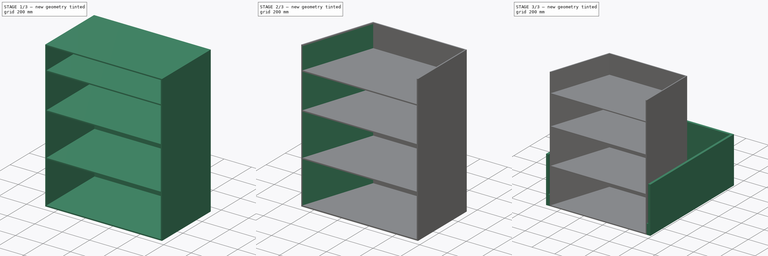
[diagram: build sequence overview — one tinted view per stage of 3, left to right]
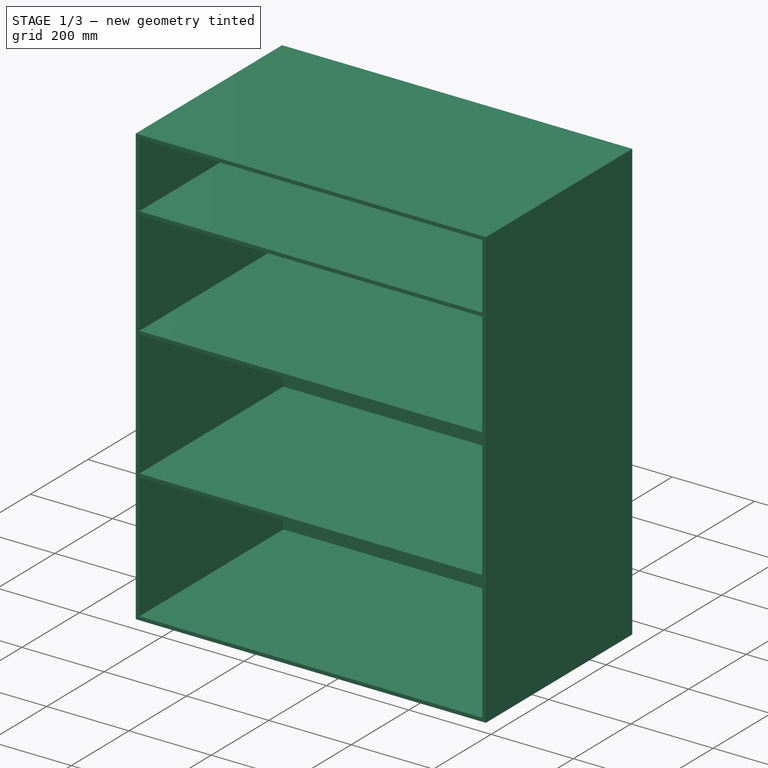
[diagram: stage 1 of 3 — iso view after this stage's code; geometry added in this stage tinted green]
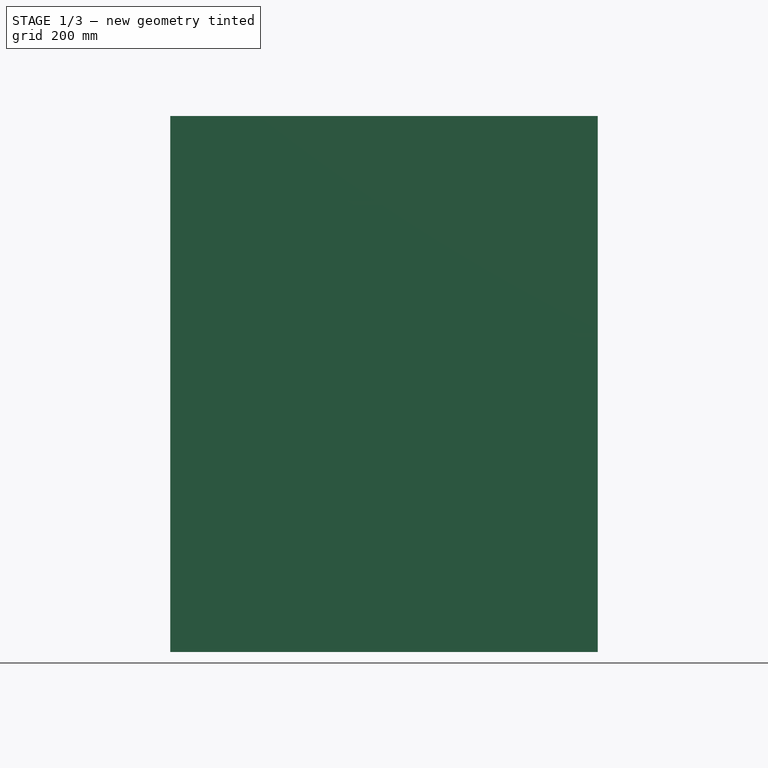
[diagram: stage 1 of 3 — front view after this stage's code; geometry added in this stage tinted green]
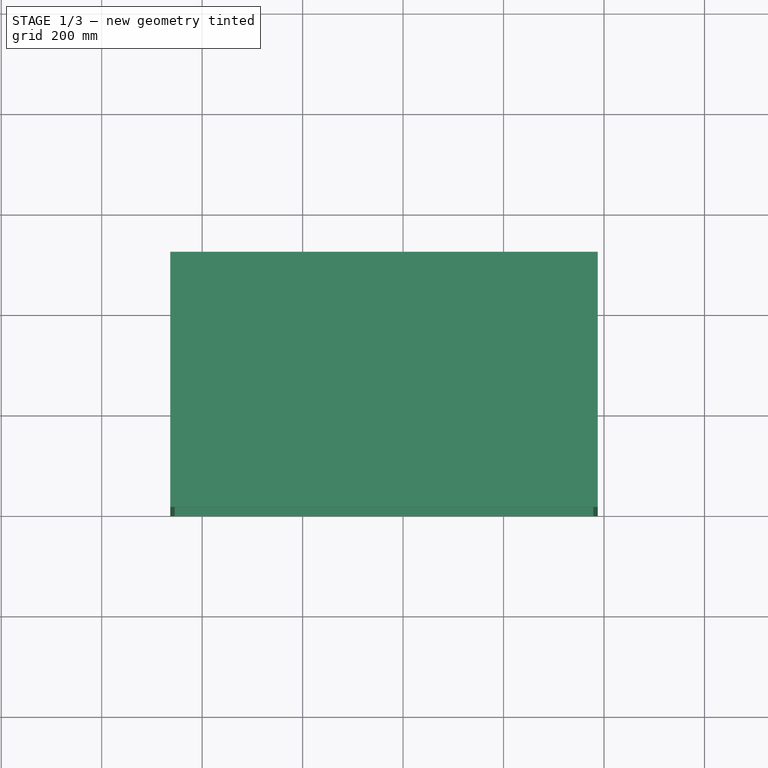
[diagram: stage 1 of 3 — top view after this stage's code; geometry added in this stage tinted green]
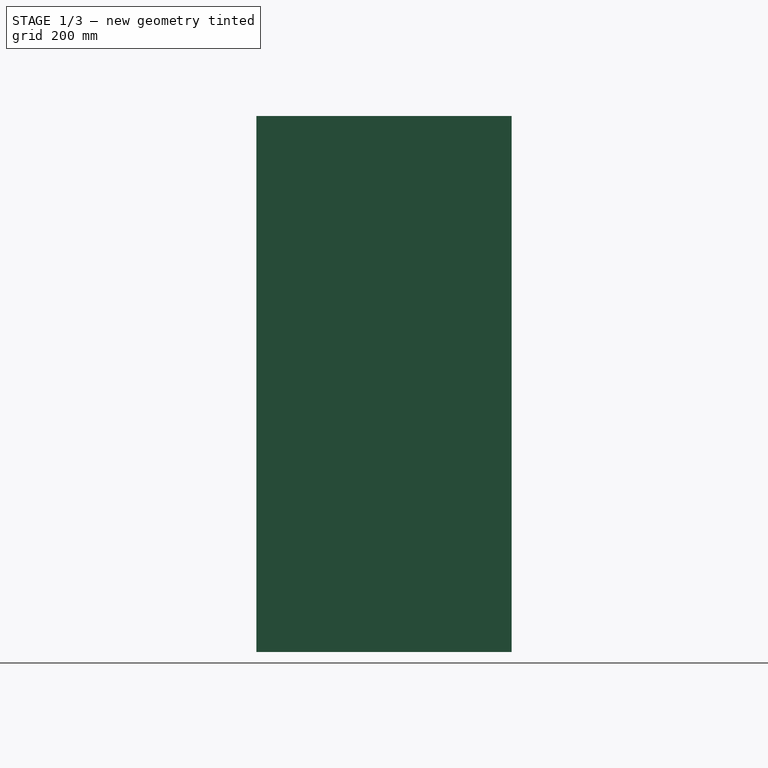
[diagram: stage 1 of 3 — right view after this stage's code; geometry added in this stage tinted green]
FCSTD DOCUMENT  (FreeCAD 0.19R24276 (Git))
Label: hingedcabinet
License: All rights reserved
LicenseURL: http://en.wikipedia.org/wiki/All_rights_reserved
objects: Sketcher::SketchObject×7, PartDesign::Pad×4, PartDesign::Pocket×3, PartDesign::Body×2, App::Part×1
note: 23 computed .brp shape members not serialized (recipe doc carries the construction recipe); baked Part::Feature solids carry a one-line shape summary decoded from their .brp

FEATURE [Sketcher::SketchObject] Sketch
  FullyConstrained = true
  MapMode = 5
  Support = -> [XY_Plane]
  sketch-geometry (6):
    g0: LineSegment StartX=-12.54 StartY=7.39e-13 StartZ=0 EndX=-863.44 EndY=7.39e-13 EndZ=0
    g1: LineSegment StartX=-863.44 StartY=508 StartZ=0 EndX=-12.54 EndY=508 EndZ=0
    g2: LineSegment StartX=-12.54 StartY=508 StartZ=0 EndX=-12.54 EndY=7.39e-13 EndZ=0
    g3: LineSegment StartX=-863.44 StartY=508 StartZ=0 EndX=-863.44 EndY=7.39e-13 EndZ=0
    g4: LineSegment StartX=-12.54 StartY=7.39e-13 StartZ=0 EndX=0 EndY=0 EndZ=0
    g5: LineSegment StartX=-875.98 StartY=0 StartZ=0 EndX=-863.44 EndY=7.39e-13 EndZ=0
  constraints (17):
    c: Coincident(g1,g2)
    c: Coincident(g2,g0)
    c: Horizontal(g0)
    c: Horizontal(g1)
    c: Vertical(g2)
    c: DistanceX(g0,g0) = 850.9
    c: DistanceY(g2,g2) = 508
    c: Coincident(g3,g1)
    c: Coincident(g3,g0)
    c: PointOnObject(g0,g-1)
    c: Coincident(g4,g0)
    c: Coincident(g4,g-1)
    c: PointOnObject(g5,g-1)
    c: Coincident(g5,g0)
    c: Equal(g4,g5)
    c: DistanceX(g5,g5) = 12.54
    c: Vertical(g1,g0)
FEATURE [PartDesign::Pad] Pad
  Direction = (1,1,1)
  Length = 1066.8
  Length2 = 100
  Profile = -> Sketch
  Type = 0
FEATURE [PartDesign::Body] Body001  label="Pantry"
  Group = -> [Sketch001,Pad001,Sketch002,Pad002]
  Origin = -> Origin003
  Tip = -> Pad002
FEATURE [Sketcher::SketchObject] Sketch003
  ExternalGeometry = -> [Pad,Sketch]
  FullyConstrained = true
  MapMode = 5
  Placement = pos=(0,7.39e-13,0) rot=(1,0,0;1.5708rad)
  Support = -> [Pad]
  sketch-geometry (16):
    g0: LineSegment StartX=-854.709 StartY=313.531 StartZ=0 EndX=-21.2713 EndY=313.531 EndZ=0
    g1: LineSegment StartX=-854.709 StartY=322.263 StartZ=0 EndX=-21.2713 EndY=322.263 EndZ=0
    g2: LineSegment StartX=-854.709 StartY=627.062 StartZ=0 EndX=-21.2713 EndY=627.062 EndZ=0
    g3: LineSegment StartX=-854.709 StartY=635.794 StartZ=0 EndX=-21.2713 EndY=635.794 EndZ=0
    g4: LineSegment StartX=-854.709 StartY=889.794 StartZ=0 EndX=-21.2713 EndY=889.794 EndZ=0
    g5: LineSegment StartX=-854.709 StartY=898.525 StartZ=0 EndX=-21.2713 EndY=898.525 EndZ=0
    g6: LineSegment StartX=-854.709 StartY=1058.07 StartZ=0 EndX=-854.709 EndY=898.525 EndZ=0
    g7: LineSegment StartX=-854.709 StartY=1058.07 StartZ=0 EndX=-21.2713 EndY=1058.07 EndZ=0
    g8: LineSegment StartX=-21.2713 StartY=1058.07 StartZ=0 EndX=-21.2713 EndY=898.525 EndZ=0
    g9: LineSegment StartX=-854.709 StartY=8.73125 StartZ=0 EndX=-21.2713 EndY=8.73125 EndZ=0
    g10: LineSegment StartX=-854.709 StartY=889.794 StartZ=0 EndX=-854.709 EndY=635.794 EndZ=0
    g11: LineSegment StartX=-21.2713 StartY=889.794 StartZ=0 EndX=-21.2713 EndY=635.794 EndZ=0
    g12: LineSegment StartX=-21.2713 StartY=627.063 StartZ=0 EndX=-21.2712 EndY=322.263 EndZ=0
    g13: LineSegment StartX=-854.709 StartY=627.063 StartZ=0 EndX=-854.709 EndY=322.263 EndZ=0
    g14: LineSegment StartX=-854.709 StartY=313.531 StartZ=0 EndX=-854.709 EndY=8.73125 EndZ=0
    g15: LineSegment StartX=-21.2712 StartY=313.531 StartZ=0 EndX=-21.2712 EndY=8.73125 EndZ=0
  constraints (50):
    c: Horizontal(g0)
    c: Horizontal(g1)
    c: Horizontal(g2)
    c: Horizontal(g3)
    c: Horizontal(g4)
    c: Horizontal(g5)
    c: Vertical(g6)
    c: Horizontal(g7)
    c: Vertical(g8)
    c: Horizontal(g9)
    c: Coincident(g15,g9)
    c: Coincident(g14,g9)
    c: Coincident(g7,g6)
    c: Coincident(g8,g7)
    c: DistanceY(g7,g-6) = 8.73125
    c: DistanceX(g7,g-6) = 8.73125
    c: DistanceY(g-5,g14) = 8.73125
    c: DistanceX(g-5,g14) = 8.73125
    c: PointOnObject(g3,g6)
    c: PointOnObject(g2,g6)
    c: PointOnObject(g1,g6)
    c: PointOnObject(g0,g6)
    c: PointOnObject(g1,g8)
    c: PointOnObject(g0,g8)
    c: PointOnObject(g3,g8)
    c: PointOnObject(g2,g8)
    c: DistanceY(g4,g5) = 8.73125
    c: DistanceY(g3,g4) = 254
    c: DistanceY(g2,g3) = 8.73125
    c: DistanceY(g1,g2) = 304.8
    c: DistanceY(g0,g1) = 8.73125
    c: DistanceY(g14,g0) = 304.8
    c: Coincident(g6,g5)
    c: Coincident(g10,g4)
    c: Tangent(g6,g10)
    c: Coincident(g8,g5)
    c: Coincident(g11,g4)
    c: Tangent(g8,g11)
    c: PointOnObject(g11,g3)
    c: PointOnObject(g12,g2)
    c: Tangent(g11,g12)
    c: PointOnObject(g10,g3)
    c: PointOnObject(g13,g2)
    c: Tangent(g10,g13)
    c: PointOnObject(g13,g1)
    c: PointOnObject(g14,g0)
    c: Tangent(g13,g14)
    c: PointOnObject(g12,g1)
    c: PointOnObject(g15,g0)
    c: Tangent(g12,g15)
FEATURE [PartDesign::Pocket] Pocket
  BaseFeature = -> Pad
  Length = 500
  Length2 = 100
  Profile = -> Sketch003
  Type = 0
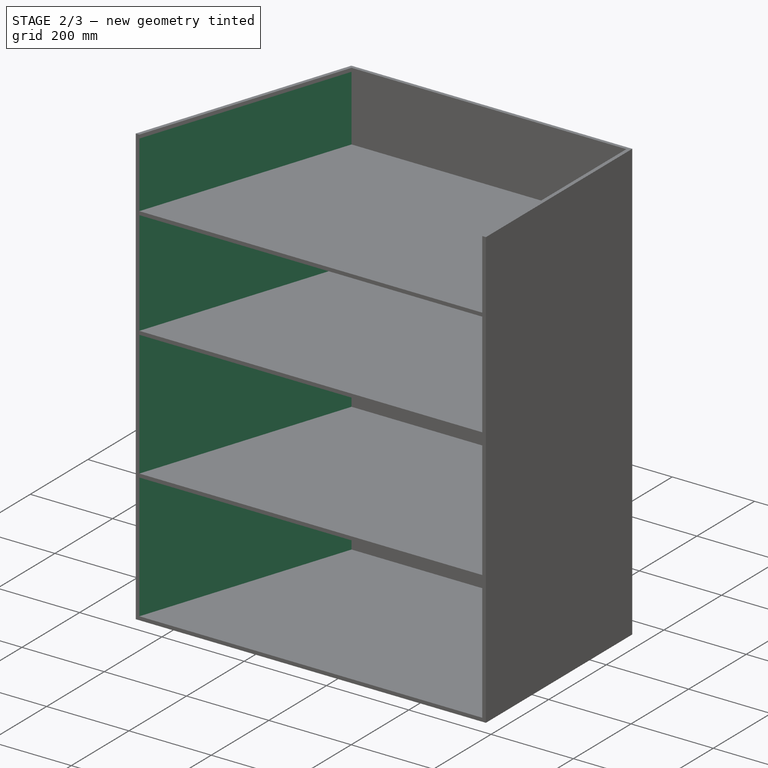
[diagram: stage 2 of 3 — iso view after this stage's code; geometry added in this stage tinted green]
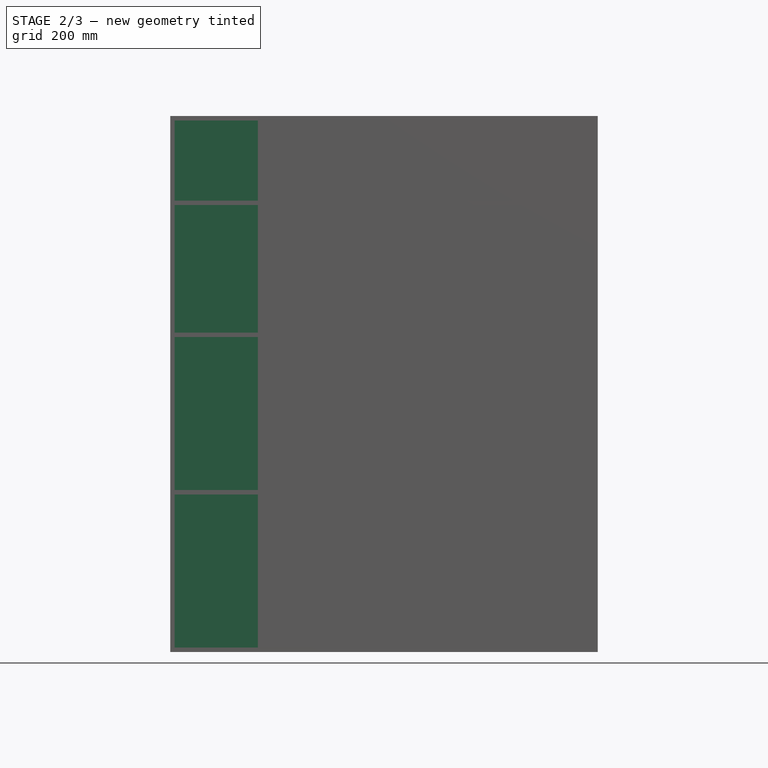
[diagram: stage 2 of 3 — front view after this stage's code; geometry added in this stage tinted green]
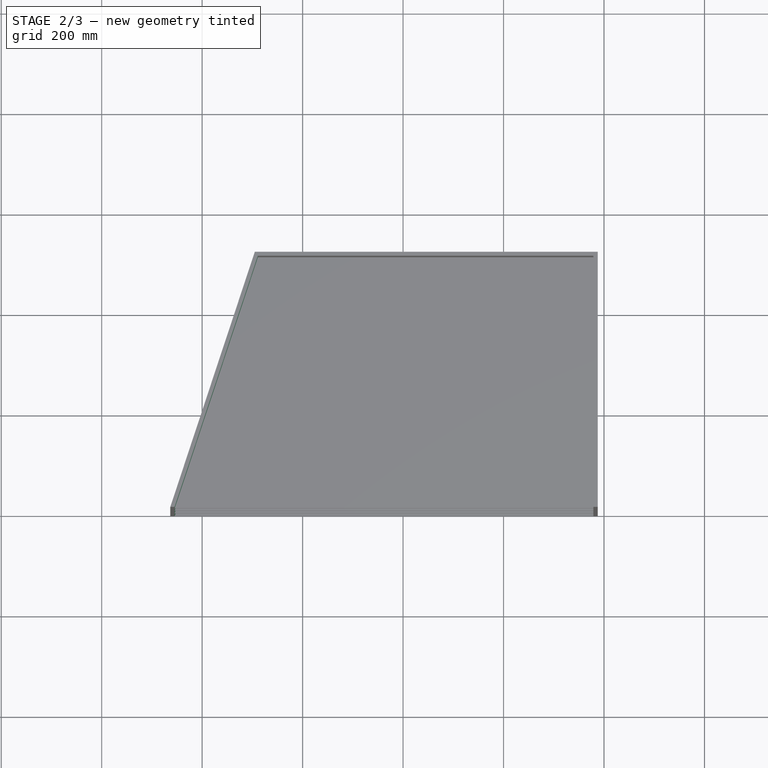
[diagram: stage 2 of 3 — top view after this stage's code; geometry added in this stage tinted green]
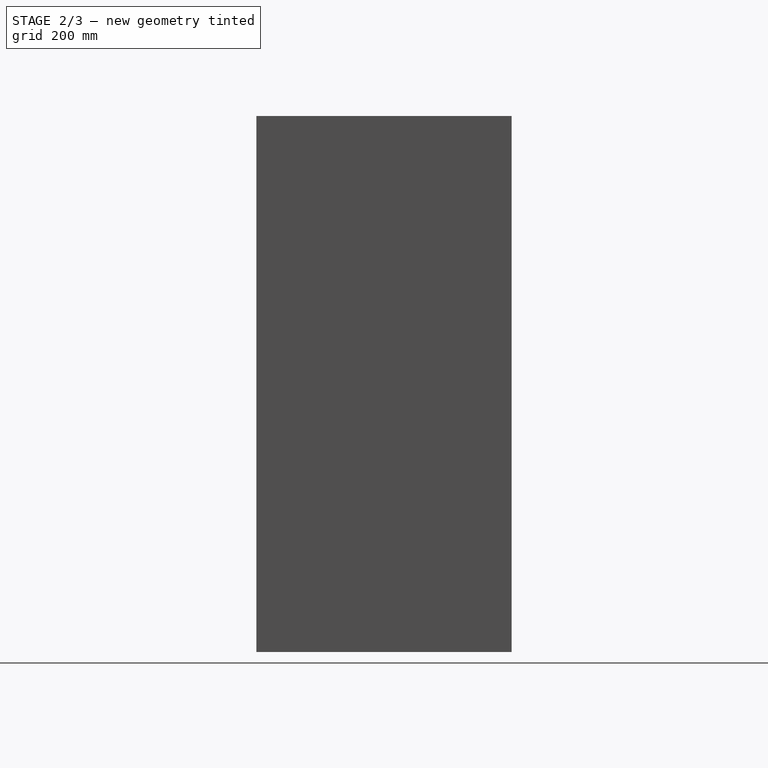
[diagram: stage 2 of 3 — right view after this stage's code; geometry added in this stage tinted green]
FEATURE [Sketcher::SketchObject] Sketch004
  ExternalGeometry = -> [Pocket]
  FullyConstrained = true
  MapMode = 5
  Placement = pos=(0,0,1066.8) rot=(0,0,1;0rad)
  Support = -> [Pocket]
  sketch-geometry (4):
    g0: ArcOfCircle CenterX=-12.54 CenterY=7.39e-13 CenterZ=0 NormalX=0 NormalY=0 NormalZ=1 AngleXU=0 Radius=850.9 StartAngle=2.50182 EndAngle=3.14159
    g1: LineSegment StartX=-863.44 StartY=8.527e-13 StartZ=0 EndX=-695.158 EndY=508 EndZ=0
    g2: LineSegment StartX=-695.158 StartY=508 StartZ=0 EndX=-863.44 EndY=508 EndZ=0
    g3: LineSegment StartX=-863.44 StartY=508 StartZ=0 EndX=-863.44 EndY=8.527e-13 EndZ=0
  constraints (9):
    c: Coincident(g0,g-6)
    c: Coincident(g0,g-5)
    c: PointOnObject(g0,g-4)
    c: Coincident(g1,g0)
    c: Coincident(g1,g0)
    c: Coincident(g2,g1)
    c: Coincident(g2,g-4)
    c: Coincident(g3,g2)
    c: Coincident(g3,g1)
FEATURE [PartDesign::Pocket] Pocket001
  BaseFeature = -> Pocket
  Length = 5
  Length2 = 100
  Profile = -> Sketch004
  Type = 1
FEATURE [Sketcher::SketchObject] Sketch005
  ExternalGeometry = -> [Pocket001]
  FullyConstrained = true
  MapMode = 5
  Placement = pos=(0,0,1066.8) rot=(0,0,1;0rad)
  Support = -> [Pocket001]
  sketch-geometry (4):
    g0: LineSegment StartX=-854.709 StartY=7.39e-13 StartZ=0 EndX=-686.426 EndY=508 EndZ=0
    g1: LineSegment StartX=-686.426 StartY=508 StartZ=0 EndX=-695.158 EndY=508 EndZ=0
    g2: LineSegment StartX=-695.158 StartY=508 StartZ=0 EndX=-863.44 EndY=7.39e-13 EndZ=0
    g3: LineSegment StartX=-863.44 StartY=7.39e-13 StartZ=0 EndX=-854.709 EndY=7.39e-13 EndZ=0
  constraints (10):
    c: PointOnObject(g0,g-4)
    c: PointOnObject(g0,g-5)
    c: DistanceX(g-5,g0) = 8.73125
    c: DistanceX(g-4,g0) = 8.73125
    c: Coincident(g1,g0)
    c: Coincident(g1,g-5)
    c: Coincident(g2,g1)
    c: Coincident(g2,g-4)
    c: Coincident(g3,g2)
    c: Coincident(g3,g0)
FEATURE [PartDesign::Pad] Pad003
  BaseFeature = -> Pocket001
  Direction = (1,1,1)
  Length = 10
  Length2 = 100
  Profile = -> Sketch005
  Refine = true
  Reversed = true
  Type = 1
FEATURE [Sketcher::SketchObject] Sketch006
  ExternalGeometry = -> [Pad003]
  FullyConstrained = true
  MapMode = 5
  Placement = pos=(0,0,1066.8) rot=(0,0,1;0rad)
  Support = -> [Pad003]
  sketch-geometry (4):
    g0: LineSegment StartX=-689.076 StartY=500 StartZ=0 EndX=-854.709 EndY=9.663e-13 EndZ=0
    g1: LineSegment StartX=-854.709 StartY=9.663e-13 StartZ=0 EndX=-21.2713 EndY=9.739e-13 EndZ=0
    g2: LineSegment StartX=-21.2713 StartY=9.739e-13 StartZ=0 EndX=-21.2713 EndY=500 EndZ=0
    g3: LineSegment StartX=-21.2713 StartY=500 StartZ=0 EndX=-689.076 EndY=500 EndZ=0
  constraints (8):
    c: Coincident(g0,g-5)
    c: Coincident(g0,g-4)
    c: Coincident(g1,g0)
    c: Coincident(g1,g-6)
    c: Coincident(g2,g1)
    c: Coincident(g2,g-6)
    c: Coincident(g3,g2)
    c: Coincident(g3,g0)
FEATURE [PartDesign::Pocket] Pocket002
  BaseFeature = -> Pad003
  Length = 5
  Length2 = 100
  Profile = -> Sketch006
  Refine = true
  Type = 2
FEATURE [PartDesign::Body] Body  label="Cabinet"
  AttacherType = Attacher::AttachEngine3D
  Group = -> [Sketch,Pad,Sketch003,Pocket,Sketch004,Pocket001,Sketch005,Pad003,Sketch006,Pocket002]
  Origin = -> Origin
  Tip = -> Pocket002
FEATURE [App::Part] Part
  Group = -> [Body,Body001]
  Origin = -> Origin001
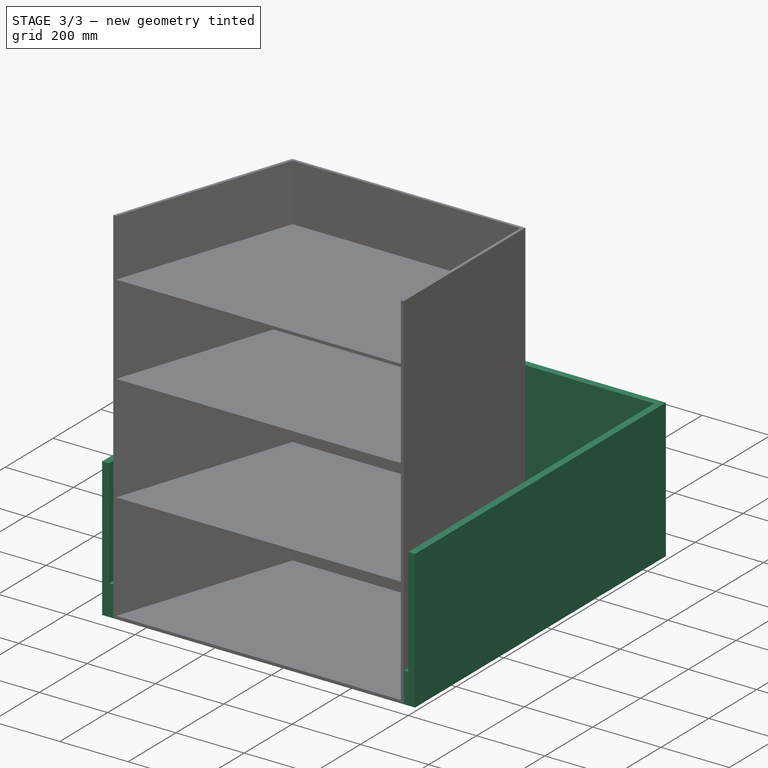
[diagram: stage 3 of 3 — iso view after this stage's code; geometry added in this stage tinted green]
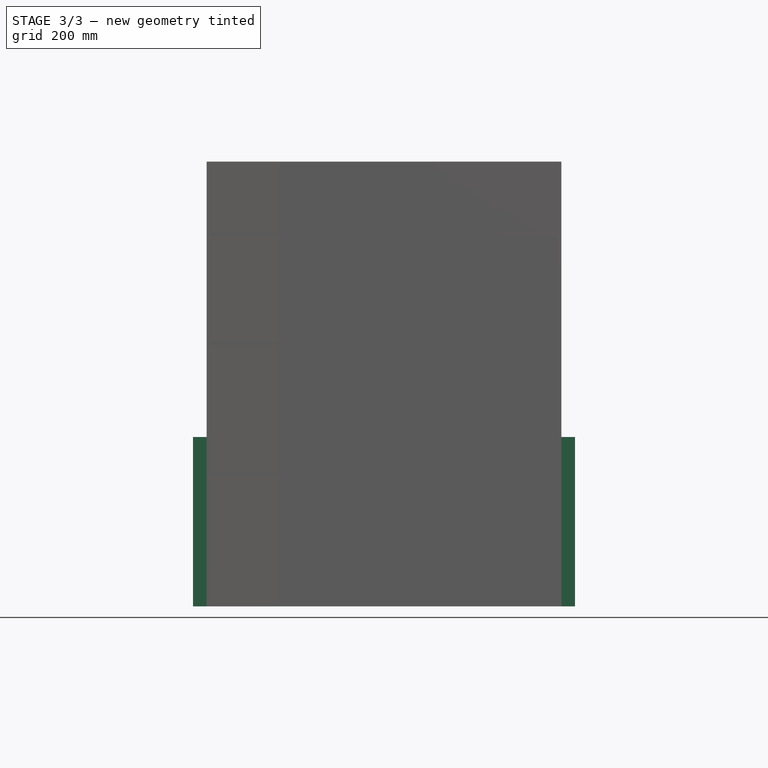
[diagram: stage 3 of 3 — front view after this stage's code; geometry added in this stage tinted green]
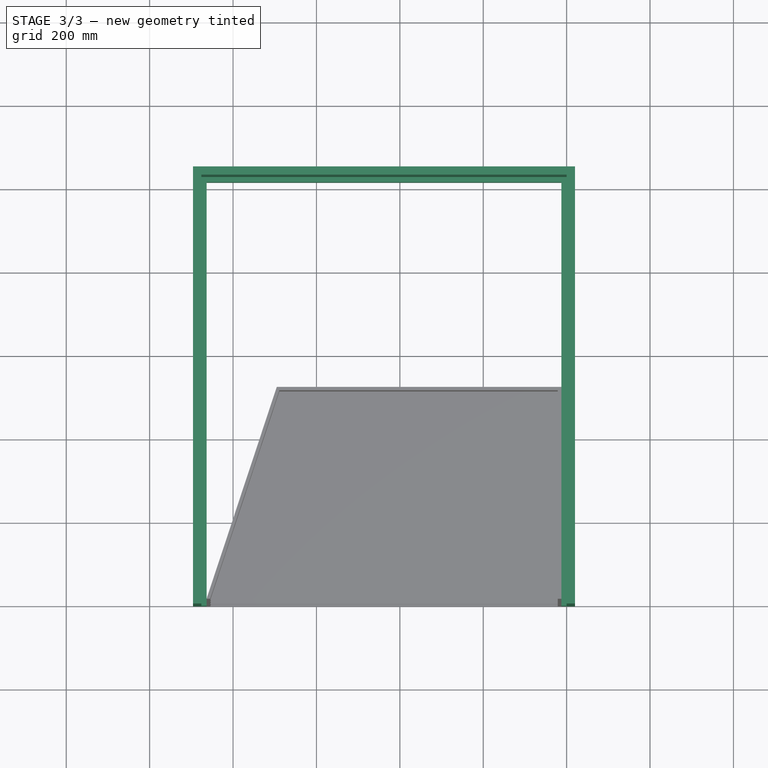
[diagram: stage 3 of 3 — top view after this stage's code; geometry added in this stage tinted green]
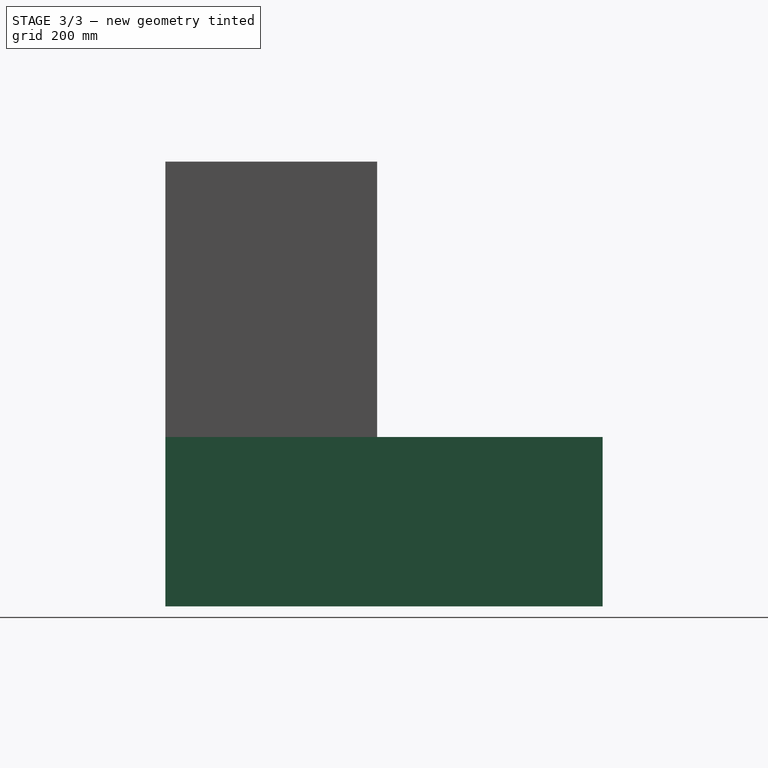
[diagram: stage 3 of 3 — right view after this stage's code; geometry added in this stage tinted green]
FEATURE [Sketcher::SketchObject] Sketch001
  FullyConstrained = true
  MapMode = 5
  Support = -> [XY_Plane003]
  sketch-geometry (10):
    g0: LineSegment StartX=0 StartY=0 StartZ=0 EndX=-875.97 EndY=0 EndZ=0
    g1: LineSegment StartX=-875.97 StartY=0 StartZ=0 EndX=-875.97 EndY=1028.7 EndZ=0
    g2: LineSegment StartX=-875.97 StartY=1028.7 StartZ=0 EndX=0 EndY=1028.7 EndZ=0
    g3: LineSegment StartX=0 StartY=1028.7 StartZ=0 EndX=0 EndY=0 EndZ=0
    g4: LineSegment StartX=-895.97 StartY=1048.7 StartZ=0 EndX=20 EndY=1048.7 EndZ=0
    g5: LineSegment StartX=20 StartY=1048.7 StartZ=0 EndX=20 EndY=0 EndZ=0
    g6: LineSegment StartX=20 StartY=0 StartZ=0 EndX=-895.97 EndY=0 EndZ=0
    g7: LineSegment StartX=-895.97 StartY=0 StartZ=0 EndX=-895.97 EndY=1048.7 EndZ=0
    g8: LineSegment StartX=-895.97 StartY=0 StartZ=0 EndX=-875.97 EndY=0 EndZ=0
    g9: LineSegment StartX=0 StartY=0 StartZ=0 EndX=20 EndY=0 EndZ=0
  constraints (27):
    c: Coincident(g0,g1)
    c: Coincident(g1,g2)
    c: Coincident(g2,g3)
    c: Coincident(g3,g0)
    c: Horizontal(g0)
    c: Horizontal(g2)
    c: Vertical(g1)
    c: Vertical(g3)
    c: Coincident(g0,g-1)
    c: DistanceX(g2,g2) = 875.97
    c: DistanceY(g3,g3) = 1028.7
    c: Coincident(g4,g5)
    c: Coincident(g5,g6)
    c: Coincident(g6,g7)
    c: Coincident(g7,g4)
    c: Horizontal(g4)
    c: Horizontal(g6)
    c: Vertical(g5)
    c: Vertical(g7)
    c: PointOnObject(g5,g-1)
    c: DistanceX(g3,g5) = 20
    c: DistanceX(g6,g1) = 20
    c: DistanceY(g2,g4) = 20
    c: Coincident(g8,g7)
    c: Coincident(g8,g1)
    c: Coincident(g9,g3)
    c: Coincident(g9,g5)
FEATURE [PartDesign::Pad] Pad001
  Direction = (1,1,1)
  Length = 406.4
  Length2 = 100
  Profile = -> Sketch001
  Type = 0
FEATURE [Sketcher::SketchObject] Sketch002
  ExternalGeometry = -> [Pad001]
  FullyConstrained = true
  MapMode = 5
  Support = -> [XY_Plane003]
  sketch-geometry (10):
    g0: LineSegment StartX=0 StartY=0 StartZ=0 EndX=-12.54 EndY=0 EndZ=0
    g1: LineSegment StartX=-12.54 StartY=0 StartZ=0 EndX=-12.54 EndY=1016.16 EndZ=0
    g2: LineSegment StartX=-12.54 StartY=1028.7 StartZ=0 EndX=0 EndY=1028.7 EndZ=0
    g3: LineSegment StartX=0 StartY=1028.7 StartZ=0 EndX=0 EndY=0 EndZ=0
    g4: LineSegment StartX=-12.54 StartY=1028.7 StartZ=0 EndX=-875.97 EndY=1028.7 EndZ=0
    g5: LineSegment StartX=-875.97 StartY=1028.7 StartZ=0 EndX=-875.97 EndY=1016.16 EndZ=0
    g6: LineSegment StartX=-863.43 StartY=1016.16 StartZ=0 EndX=-12.54 EndY=1016.16 EndZ=0
    g7: LineSegment StartX=-863.43 StartY=1016.16 StartZ=0 EndX=-863.43 EndY=0 EndZ=0
    g8: LineSegment StartX=-863.43 StartY=0 StartZ=0 EndX=-875.97 EndY=0 EndZ=0
    g9: LineSegment StartX=-875.97 StartY=0 StartZ=0 EndX=-875.97 EndY=1016.16 EndZ=0
  constraints (28):
    c: Coincident(g0,g1)
    c: Coincident(g2,g3)
    c: Coincident(g3,g0)
    c: Horizontal(g0)
    c: Horizontal(g2)
    c: Vertical(g1)
    c: Vertical(g3)
    c: Coincident(g0,g-1)
    c: PointOnObject(g2,g-4)
    c: DistanceX(g2,g2) = 12.54
    c: Coincident(g4,g5)
    c: Horizontal(g4)
    c: Horizontal(g6)
    c: Vertical(g5)
    c: Coincident(g4,g2)
    c: PointOnObject(g5,g-3)
    c: DistanceY(g5,g5) = 12.54
    c: Coincident(g7,g8)
    c: Coincident(g8,g9)
    c: Horizontal(g8)
    c: Vertical(g7)
    c: DistanceX(g8,g8) = 12.54
    c: DistanceY(g1,g2) = 12.54
    c: Coincident(g8,g-3)
    c: DistanceX(g0,g0) = 12.54
    c: Coincident(g6,g7)
    c: Coincident(g6,g1)
    c: Coincident(g9,g5)
FEATURE [PartDesign::Pad] Pad002
  BaseFeature = -> Pad001
  Direction = (1,1,1)
  Length = 89.54
  Length2 = 100
  Profile = -> Sketch002
  Type = 0
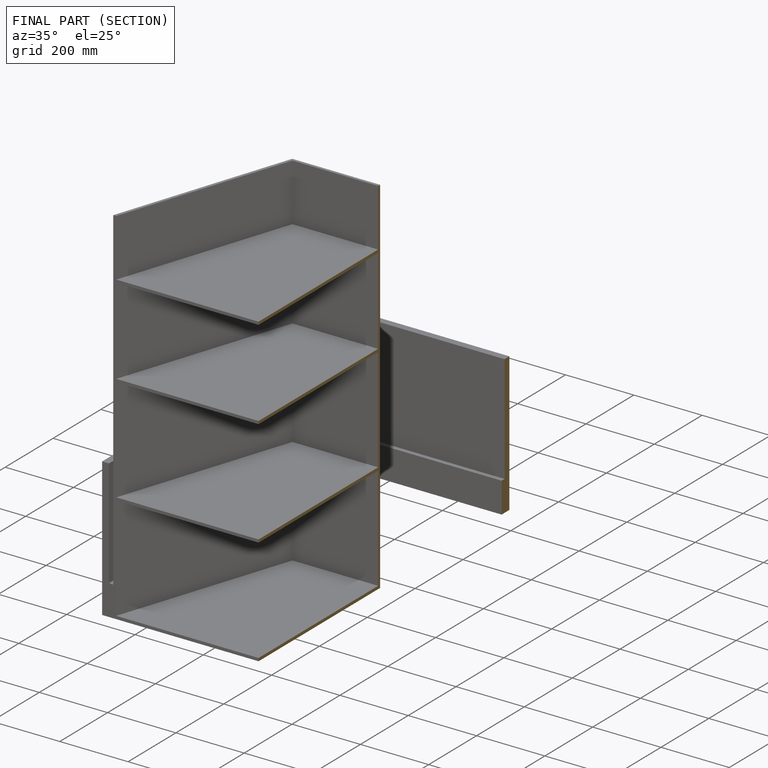
[diagram: finished part — half-section view (interior)]
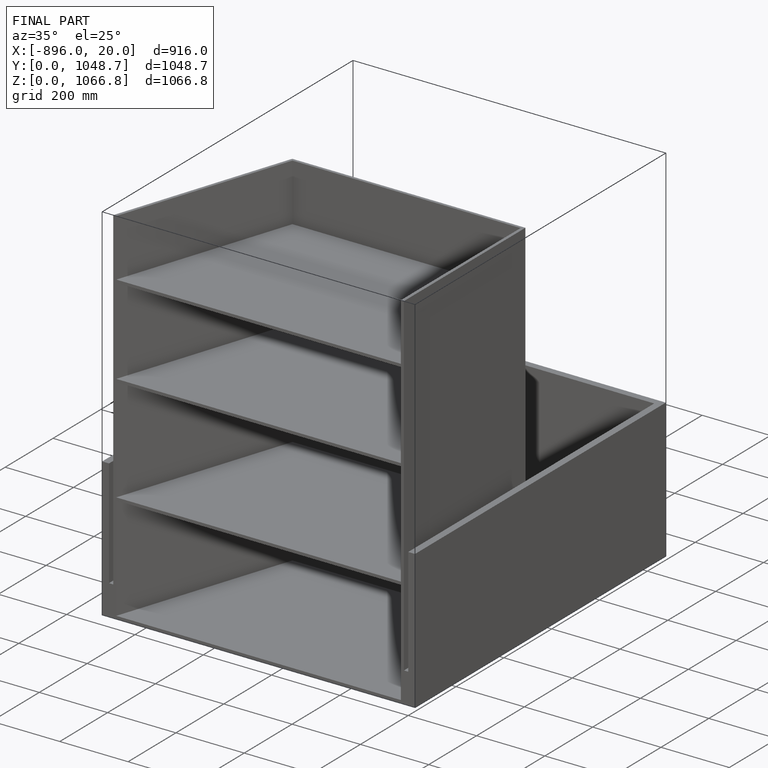
[diagram: finished part — iso view with bounding-box wireframe]
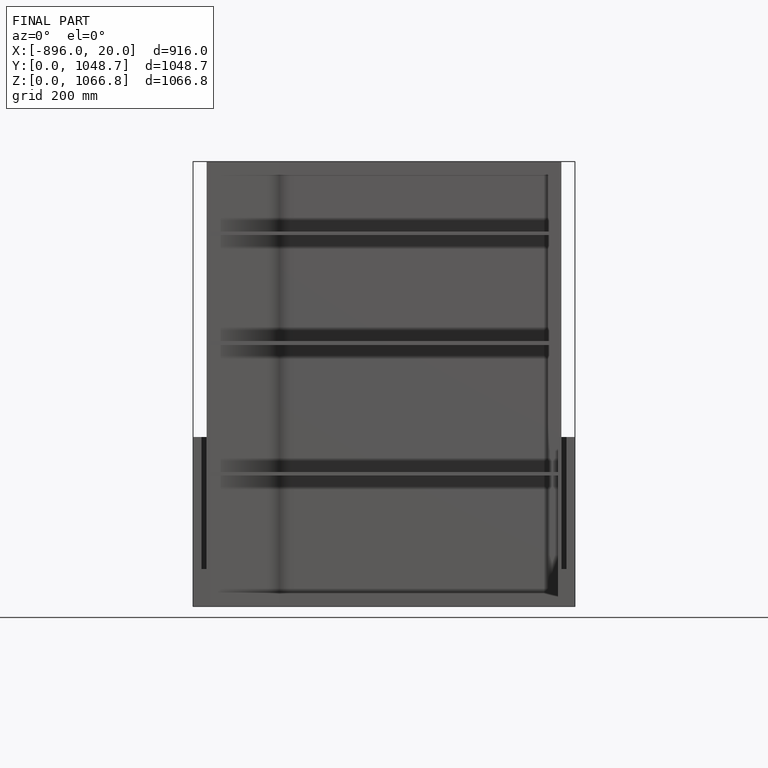
[diagram: finished part — front view with bounding-box wireframe]
